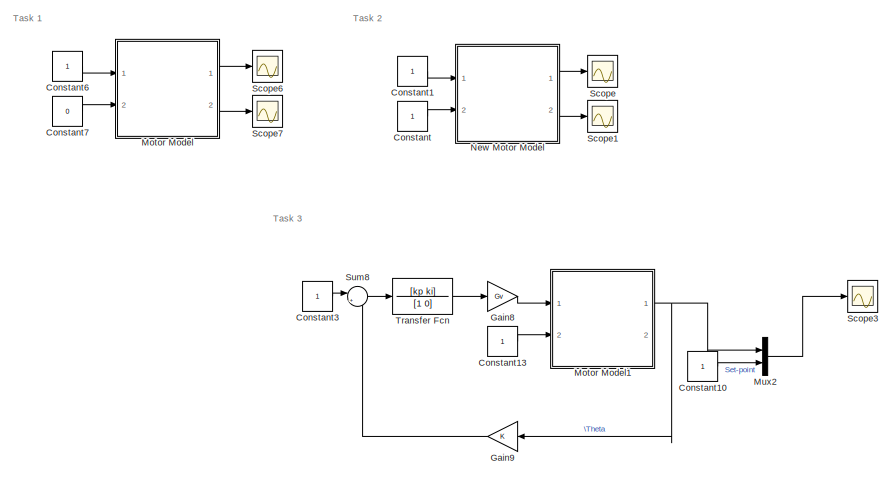
[diagram: root canvas - part 1/3, top right region]
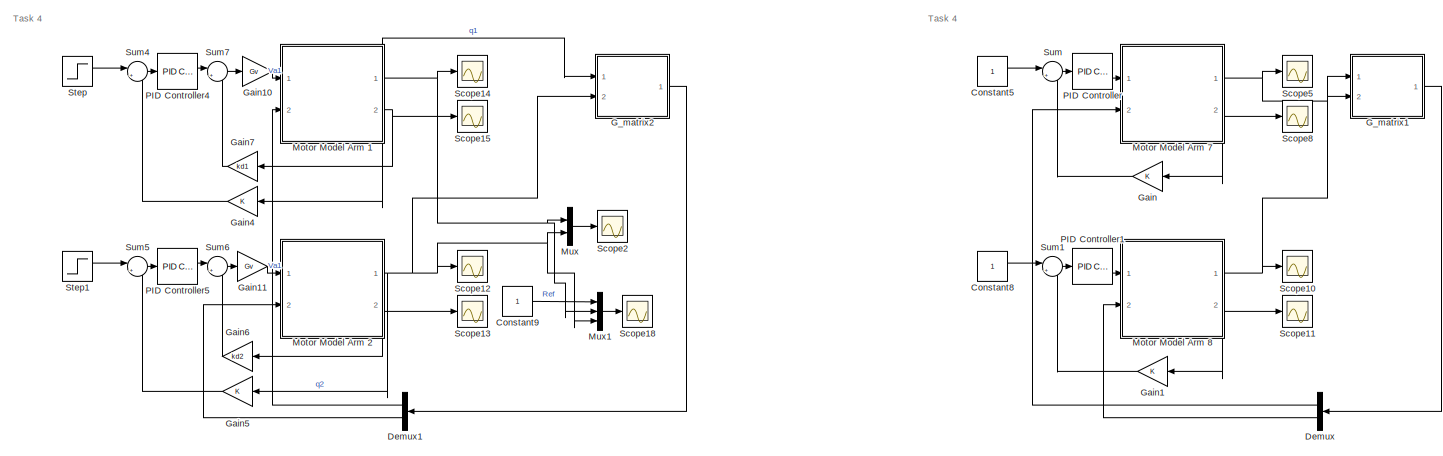
[diagram: root canvas - part 2/3, middle left region]
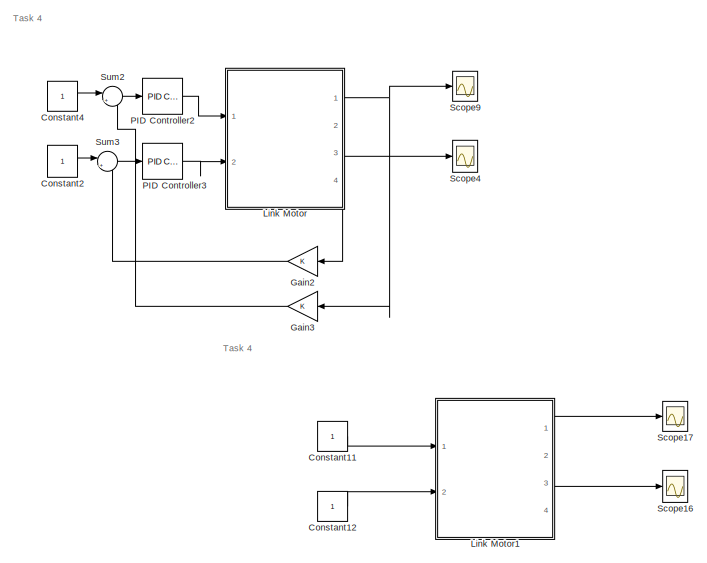
[diagram: root canvas - part 3/3, bottom right region]
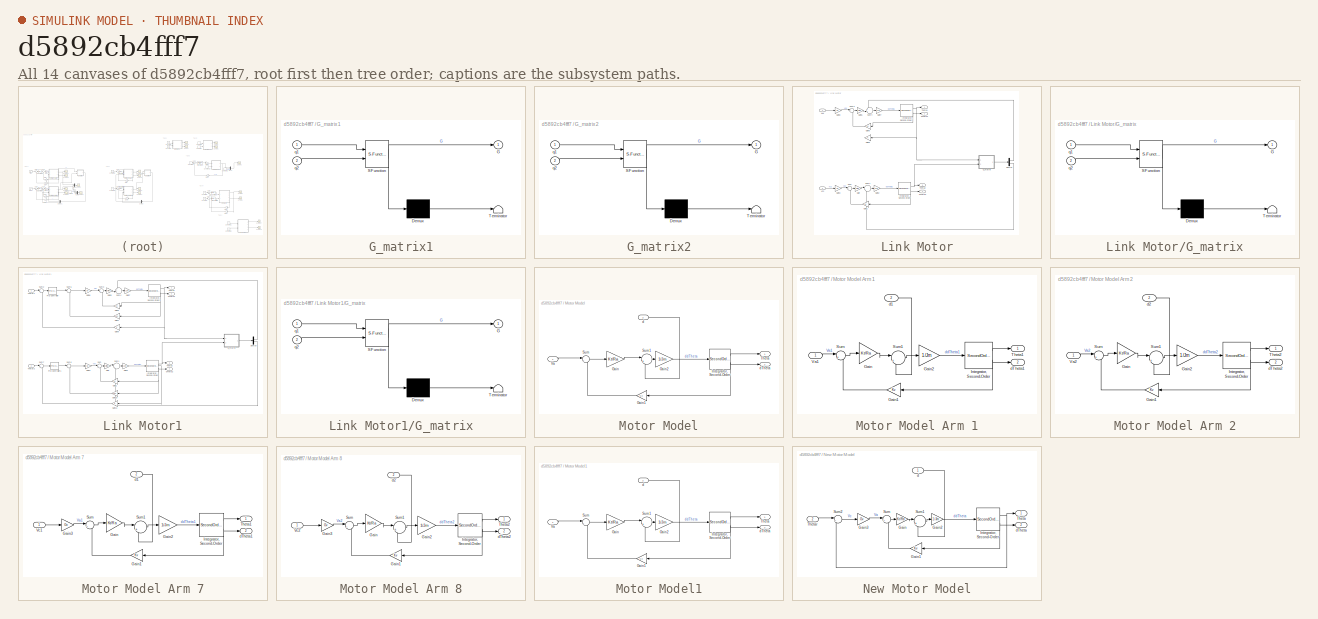
[diagram: thumbnail index - all 14 canvases of the model, root first then tree order]
MODEL slx_d5892cb4fff7
KIND model
CONFIG AbsTol = auto
CONFIG EnableMultiTasking = off
CONFIG FixedStep = dt
CONFIG MaxStep = auto
CONFIG MinStep = auto
CONFIG RelTol = 1e-3
CONFIG SampleTimeConstraint = Unconstrained
CONFIG Solver = ode4
CONFIG SolverName = ode4
CONFIG StartTime = 0.0
CONFIG StopTime = 100
BLOCK [Constant] Constant
BLOCK [Constant] Constant1
BLOCK [Constant] Constant10
BLOCK [Constant] Constant11
BLOCK [Constant] Constant12
BLOCK [Constant] Constant13
BLOCK [Constant] Constant2
BLOCK [Constant] Constant3
BLOCK [Constant] Constant4
BLOCK [Constant] Constant5
BLOCK [Constant] Constant6
BLOCK [Constant] Constant7
  Value = 0
BLOCK [Constant] Constant8
BLOCK [Constant] Constant9
BLOCK [Demux] Demux
  Outputs = 2
  Ports = [1, 2]
BLOCK [Demux] Demux1
  Outputs = 2
  Ports = [1, 2]
BLOCK [SubSystem] G_matrix1
  ErrorFcn = Stateflow.Translate.translate
  PermitHierarchicalResolution = ExplicitOnly
  Ports = [2, 1]
  RequestExecContextInheritance = off
  SFBlockType = MATLAB Function
  TreatAsAtomicUnit = on
BLOCK [Demux] G_matrix1/ Demux 
  Outputs = 1
  Ports = [1, 1]
BLOCK [S-Function] G_matrix1/ SFunction 
  EnableBusSupport = on
  FunctionName = sf_sfun
  Parameters = g,l1,lc1,lc2,m1,m2
  PortCounts = [2 2]
  Ports = [2, 2]
  SFcnIsStateOwnerBlock = off
  SFunctionDeploymentMode = off
  Tag = Stateflow S-Function 1
BLOCK [Terminator] G_matrix1/ Terminator 
BLOCK [Outport] G_matrix1/G
  VectorParamsAs1DForOutWhenUnconnected = off
BLOCK [Inport] G_matrix1/q1
BLOCK [Inport] G_matrix1/q2
  Port = 2
BLOCK [SubSystem] G_matrix2
  ErrorFcn = Stateflow.Translate.translate
  PermitHierarchicalResolution = ExplicitOnly
  Ports = [2, 1]
  RequestExecContextInheritance = off
  SFBlockType = MATLAB Function
  TreatAsAtomicUnit = on
BLOCK [Demux] G_matrix2/ Demux 
  Outputs = 1
  Ports = [1, 1]
BLOCK [S-Function] G_matrix2/ SFunction 
  EnableBusSupport = on
  FunctionName = sf_sfun
  Parameters = g,l1,lc1,lc2,m1,m2
  PortCounts = [2 2]
  Ports = [2, 2]
  SFcnIsStateOwnerBlock = off
  SFunctionDeploymentMode = off
  Tag = Stateflow S-Function 2
BLOCK [Terminator] G_matrix2/ Terminator 
BLOCK [Outport] G_matrix2/G
  VectorParamsAs1DForOutWhenUnconnected = off
BLOCK [Inport] G_matrix2/q1
BLOCK [Inport] G_matrix2/q2
  Port = 2
BLOCK [Gain] Gain
  Gain = K
BLOCK [Gain] Gain1
  Gain = K
BLOCK [Gain] Gain10
  Gain = Gv
BLOCK [Gain] Gain11
  Gain = Gv
BLOCK [Gain] Gain2
  Gain = K
BLOCK [Gain] Gain3
  Gain = K
BLOCK [Gain] Gain4
  Gain = K
BLOCK [Gain] Gain5
  Gain = K
BLOCK [Gain] Gain6
  Gain = kd2
BLOCK [Gain] Gain7
  Gain = kd1
BLOCK [Gain] Gain8
  Gain = Gv
BLOCK [Gain] Gain9
  Gain = K
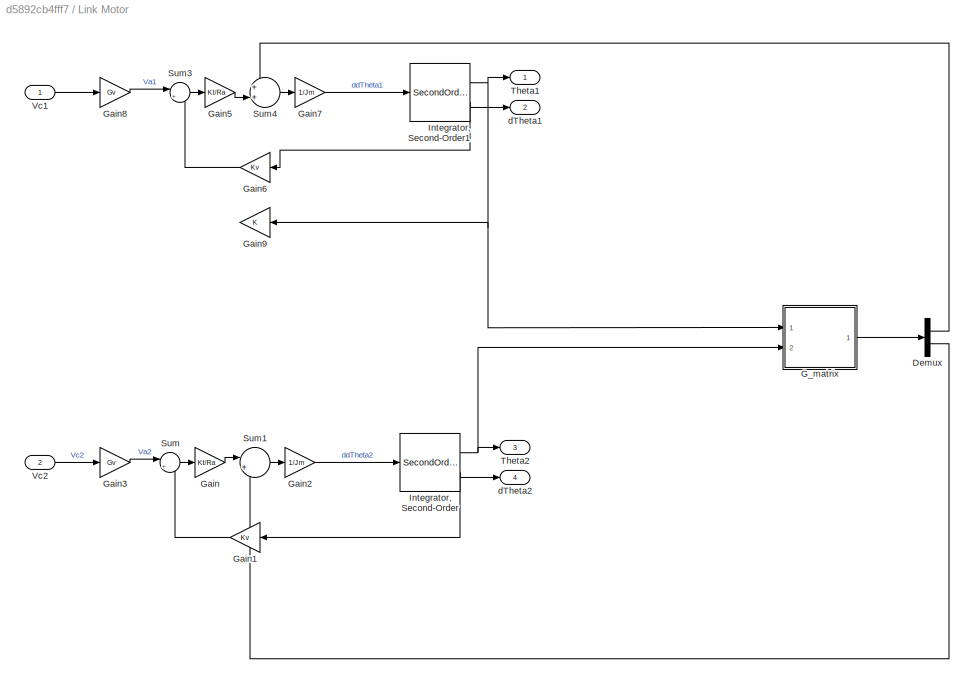
BLOCK [SubSystem] Link Motor
  Ports = [2, 4]
  RequestExecContextInheritance = off
BLOCK [Demux] Link Motor/Demux
  Outputs = 2
  Ports = [1, 2]
BLOCK [SubSystem] Link Motor/G_matrix
  ErrorFcn = Stateflow.Translate.translate
  PermitHierarchicalResolution = ExplicitOnly
  Ports = [2, 1]
  RequestExecContextInheritance = off
  SFBlockType = MATLAB Function
  TreatAsAtomicUnit = on
BLOCK [Demux] Link Motor/G_matrix/ Demux 
  Outputs = 1
  Ports = [1, 1]
BLOCK [S-Function] Link Motor/G_matrix/ SFunction 
  EnableBusSupport = on
  FunctionName = sf_sfun
  Parameters = g,l1,lc1,lc2,m1,m2
  PortCounts = [2 2]
  Ports = [2, 2]
  SFcnIsStateOwnerBlock = off
  SFunctionDeploymentMode = off
  Tag = Stateflow S-Function 8
BLOCK [Terminator] Link Motor/G_matrix/ Terminator 
BLOCK [Outport] Link Motor/G_matrix/G
  VectorParamsAs1DForOutWhenUnconnected = off
BLOCK [Inport] Link Motor/G_matrix/q1
BLOCK [Inport] Link Motor/G_matrix/q2
  Port = 2
BLOCK [Gain] Link Motor/Gain
  Gain = Kt/Ra
BLOCK [Gain] Link Motor/Gain1
  Gain = Kv
BLOCK [Gain] Link Motor/Gain2
  Gain = 1/Jm
BLOCK [Gain] Link Motor/Gain3
  Gain = Gv
BLOCK [Gain] Link Motor/Gain5
  Gain = Kt/Ra
BLOCK [Gain] Link Motor/Gain6
  Gain = Kv
BLOCK [Gain] Link Motor/Gain7
  Gain = 1/Jm
BLOCK [Gain] Link Motor/Gain8
  Gain = Gv
BLOCK [Gain] Link Motor/Gain9
  Gain = K
BLOCK [SecondOrderIntegrator] Link Motor/Integrator, Second-Order
  Ports = [1, 2]
BLOCK [SecondOrderIntegrator] Link Motor/Integrator, Second-Order1
  Ports = [1, 2]
BLOCK [Sum] Link Motor/Sum
  Inputs = |+-
  Ports = [2, 1]
BLOCK [Sum] Link Motor/Sum1
  Inputs = |++
  Ports = [2, 1]
BLOCK [Sum] Link Motor/Sum3
  Inputs = |+-
  Ports = [2, 1]
BLOCK [Sum] Link Motor/Sum4
  Inputs = ++|
  Ports = [2, 1]
BLOCK [Outport] Link Motor/Theta1
BLOCK [Outport] Link Motor/Theta2
  Port = 3
BLOCK [Inport] Link Motor/Vc1
BLOCK [Inport] Link Motor/Vc2
  Port = 2
BLOCK [Outport] Link Motor/dTheta1
  Port = 2
BLOCK [Outport] Link Motor/dTheta2
  Port = 4
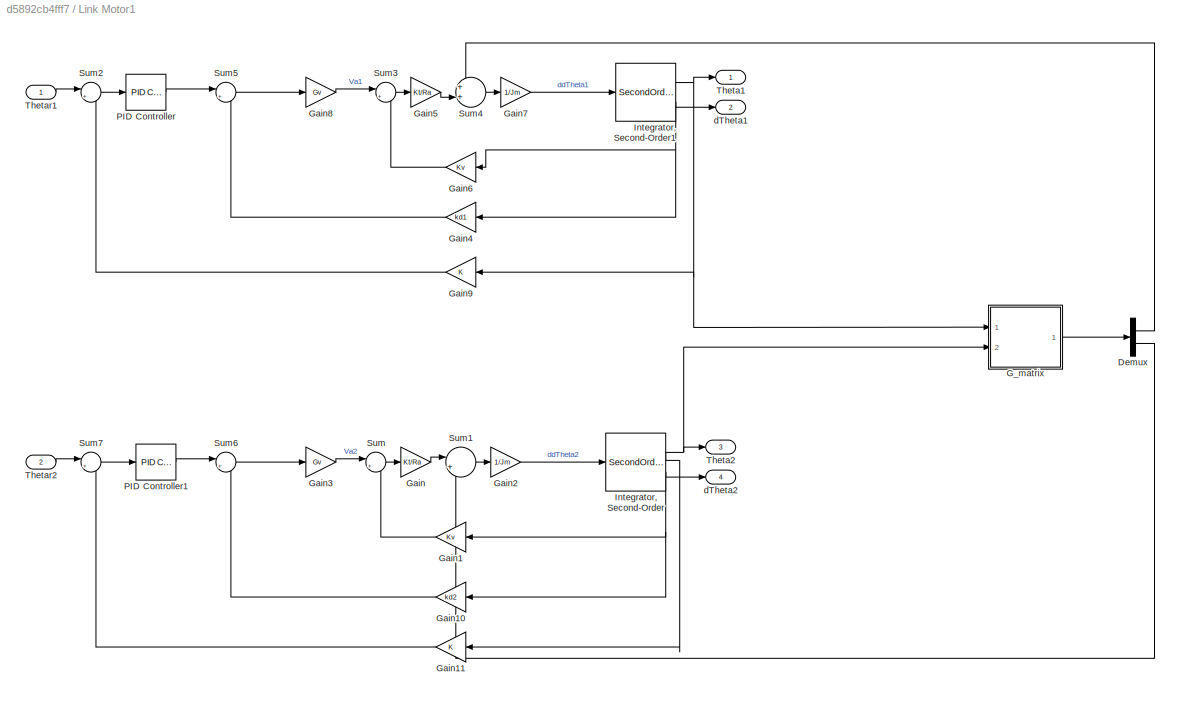
BLOCK [SubSystem] Link Motor1
  Ports = [2, 4]
  RequestExecContextInheritance = off
BLOCK [Demux] Link Motor1/Demux
  Outputs = 2
  Ports = [1, 2]
BLOCK [SubSystem] Link Motor1/G_matrix
  ErrorFcn = Stateflow.Translate.translate
  PermitHierarchicalResolution = ExplicitOnly
  Ports = [2, 1]
  RequestExecContextInheritance = off
  SFBlockType = MATLAB Function
  TreatAsAtomicUnit = on
BLOCK [Demux] Link Motor1/G_matrix/ Demux 
  Outputs = 1
  Ports = [1, 1]
BLOCK [S-Function] Link Motor1/G_matrix/ SFunction 
  EnableBusSupport = on
  FunctionName = sf_sfun
  Parameters = g,l1,lc1,lc2,m1,m2
  PortCounts = [2 2]
  Ports = [2, 2]
  SFcnIsStateOwnerBlock = off
  SFunctionDeploymentMode = off
  Tag = Stateflow S-Function 3
BLOCK [Terminator] Link Motor1/G_matrix/ Terminator 
BLOCK [Outport] Link Motor1/G_matrix/G
  VectorParamsAs1DForOutWhenUnconnected = off
BLOCK [Inport] Link Motor1/G_matrix/q1
BLOCK [Inport] Link Motor1/G_matrix/q2
  Port = 2
BLOCK [Gain] Link Motor1/Gain
  Gain = Kt/Ra
BLOCK [Gain] Link Motor1/Gain1
  Gain = Kv
BLOCK [Gain] Link Motor1/Gain10
  Gain = kd2
BLOCK [Gain] Link Motor1/Gain11
  Gain = K
BLOCK [Gain] Link Motor1/Gain2
  Gain = 1/Jm
BLOCK [Gain] Link Motor1/Gain3
  Gain = Gv
BLOCK [Gain] Link Motor1/Gain4
  Gain = kd1
BLOCK [Gain] Link Motor1/Gain5
  Gain = Kt/Ra
BLOCK [Gain] Link Motor1/Gain6
  Gain = Kv
BLOCK [Gain] Link Motor1/Gain7
  Gain = 1/Jm
BLOCK [Gain] Link Motor1/Gain8
  Gain = Gv
BLOCK [Gain] Link Motor1/Gain9
  Gain = K
BLOCK [SecondOrderIntegrator] Link Motor1/Integrator, Second-Order
  Ports = [1, 2]
BLOCK [SecondOrderIntegrator] Link Motor1/Integrator, Second-Order1
  Ports = [1, 2]
BLOCK [Reference] Link Motor1/PID Controller  REF=simulink/Continuous/PID Controller
  Ports = [1, 1]
  SourceBlock = simulink/Continuous/PID Controller
  SourceProductBaseCode = SL
  SourceType = PID 1dof
BLOCK [Reference] Link Motor1/PID Controller1  REF=simulink/Continuous/PID Controller
  Ports = [1, 1]
  SourceBlock = simulink/Continuous/PID Controller
  SourceProductBaseCode = SL
  SourceType = PID 1dof
BLOCK [Sum] Link Motor1/Sum
  Inputs = |+-
  Ports = [2, 1]
BLOCK [Sum] Link Motor1/Sum1
  Inputs = |++
  Ports = [2, 1]
BLOCK [Sum] Link Motor1/Sum2
  Inputs = |+-
  Ports = [2, 1]
BLOCK [Sum] Link Motor1/Sum3
  Inputs = |+-
  Ports = [2, 1]
BLOCK [Sum] Link Motor1/Sum4
  Inputs = ++|
  Ports = [2, 1]
BLOCK [Sum] Link Motor1/Sum5
  Inputs = |+-
  Ports = [2, 1]
BLOCK [Sum] Link Motor1/Sum6
  Inputs = |+-
  Ports = [2, 1]
BLOCK [Sum] Link Motor1/Sum7
  Inputs = |+-
  Ports = [2, 1]
BLOCK [Outport] Link Motor1/Theta1
BLOCK [Outport] Link Motor1/Theta2
  Port = 3
BLOCK [Inport] Link Motor1/Thetar1
BLOCK [Inport] Link Motor1/Thetar2
  Port = 2
BLOCK [Outport] Link Motor1/dTheta1
  Port = 2
BLOCK [Outport] Link Motor1/dTheta2
  Port = 4
BLOCK [SubSystem] Motor Model
  Ports = [2, 2]
  RequestExecContextInheritance = off
BLOCK [SubSystem] Motor Model Arm 1
  Ports = [2, 2]
  RequestExecContextInheritance = off
BLOCK [Gain] Motor Model Arm 1/Gain
  Gain = Kt/Ra
BLOCK [Gain] Motor Model Arm 1/Gain1
  Gain = Kv
BLOCK [Gain] Motor Model Arm 1/Gain2
  Gain = 1/Jm
BLOCK [SecondOrderIntegrator] Motor Model Arm 1/Integrator, Second-Order
  Ports = [1, 2]
BLOCK [Sum] Motor Model Arm 1/Sum
  Inputs = |+-
  Ports = [2, 1]
BLOCK [Sum] Motor Model Arm 1/Sum1
  Inputs = |++
  Ports = [2, 1]
BLOCK [Outport] Motor Model Arm 1/Theta1
  NameLocation = top
  VectorParamsAs1DForOutWhenUnconnected = off
BLOCK [Inport] Motor Model Arm 1/Va1
BLOCK [Inport] Motor Model Arm 1/d1
  Port = 2
BLOCK [Outport] Motor Model Arm 1/dTheta1
  Port = 2
  VectorParamsAs1DForOutWhenUnconnected = off
BLOCK [SubSystem] Motor Model Arm 2
  Ports = [2, 2]
  RequestExecContextInheritance = off
BLOCK [Gain] Motor Model Arm 2/Gain
  Gain = Kt/Ra
BLOCK [Gain] Motor Model Arm 2/Gain1
  Gain = Kv
BLOCK [Gain] Motor Model Arm 2/Gain2
  Gain = 1/Jm
BLOCK [SecondOrderIntegrator] Motor Model Arm 2/Integrator, Second-Order
  Ports = [1, 2]
BLOCK [Sum] Motor Model Arm 2/Sum
  Inputs = |+-
  Ports = [2, 1]
BLOCK [Sum] Motor Model Arm 2/Sum1
  Inputs = |++
  Ports = [2, 1]
BLOCK [Outport] Motor Model Arm 2/Theta2
  NameLocation = top
  VectorParamsAs1DForOutWhenUnconnected = off
BLOCK [Inport] Motor Model Arm 2/Va2
BLOCK [Inport] Motor Model Arm 2/d2
  Port = 2
BLOCK [Outport] Motor Model Arm 2/dTheta2
  Port = 2
  VectorParamsAs1DForOutWhenUnconnected = off
BLOCK [SubSystem] Motor Model Arm 7
  Ports = [2, 2]
  RequestExecContextInheritance = off
BLOCK [Gain] Motor Model Arm 7/Gain
  Gain = Kt/Ra
BLOCK [Gain] Motor Model Arm 7/Gain1
  Gain = Kv
BLOCK [Gain] Motor Model Arm 7/Gain2
  Gain = 1/Jm
BLOCK [Gain] Motor Model Arm 7/Gain3
  Gain = Gv
BLOCK [SecondOrderIntegrator] Motor Model Arm 7/Integrator, Second-Order
  Ports = [1, 2]
BLOCK [Sum] Motor Model Arm 7/Sum
  Inputs = |+-
  Ports = [2, 1]
BLOCK [Sum] Motor Model Arm 7/Sum1
  Inputs = |++
  Ports = [2, 1]
BLOCK [Outport] Motor Model Arm 7/Theta1
  NameLocation = top
  VectorParamsAs1DForOutWhenUnconnected = off
BLOCK [Inport] Motor Model Arm 7/Vc1
BLOCK [Inport] Motor Model Arm 7/d1
  Port = 2
BLOCK [Outport] Motor Model Arm 7/dTheta1
  Port = 2
  VectorParamsAs1DForOutWhenUnconnected = off
BLOCK [SubSystem] Motor Model Arm 8
  Ports = [2, 2]
  RequestExecContextInheritance = off
BLOCK [Gain] Motor Model Arm 8/Gain
  Gain = Kt/Ra
BLOCK [Gain] Motor Model Arm 8/Gain1
  Gain = Kv
BLOCK [Gain] Motor Model Arm 8/Gain2
  Gain = 1/Jm
BLOCK [Gain] Motor Model Arm 8/Gain3
  Gain = Gv
BLOCK [SecondOrderIntegrator] Motor Model Arm 8/Integrator, Second-Order
  Ports = [1, 2]
BLOCK [Sum] Motor Model Arm 8/Sum
  Inputs = |+-
  Ports = [2, 1]
BLOCK [Sum] Motor Model Arm 8/Sum1
  Inputs = |++
  Ports = [2, 1]
BLOCK [Outport] Motor Model Arm 8/Theta2
  NameLocation = top
  VectorParamsAs1DForOutWhenUnconnected = off
BLOCK [Inport] Motor Model Arm 8/Vc2
BLOCK [Inport] Motor Model Arm 8/d2
  Port = 2
BLOCK [Outport] Motor Model Arm 8/dTheta2
  Port = 2
  VectorParamsAs1DForOutWhenUnconnected = off
BLOCK [Gain] Motor Model/Gain
  Gain = Kt/Ra
BLOCK [Gain] Motor Model/Gain1
  Gain = Kv
BLOCK [Gain] Motor Model/Gain2
  Gain = 1/Jm
BLOCK [SecondOrderIntegrator] Motor Model/Integrator, Second-Order
  Ports = [1, 2]
BLOCK [Sum] Motor Model/Sum
  Inputs = |+-
  Ports = [2, 1]
BLOCK [Sum] Motor Model/Sum1
  Inputs = |++
  Ports = [2, 1]
BLOCK [Outport] Motor Model/Theta
  NameLocation = top
  VectorParamsAs1DForOutWhenUnconnected = off
BLOCK [Inport] Motor Model/Va
  NameLocation = top
BLOCK [Inport] Motor Model/d
  Port = 2
BLOCK [Outport] Motor Model/dTheta
  Port = 2
  VectorParamsAs1DForOutWhenUnconnected = off
BLOCK [SubSystem] Motor Model1
  Ports = [2, 2]
  RequestExecContextInheritance = off
BLOCK [Gain] Motor Model1/Gain
  Gain = Kt/Ra
BLOCK [Gain] Motor Model1/Gain1
  Gain = Kv
BLOCK [Gain] Motor Model1/Gain2
  Gain = 1/Jm
BLOCK [SecondOrderIntegrator] Motor Model1/Integrator, Second-Order
  Ports = [1, 2]
BLOCK [Sum] Motor Model1/Sum
  Inputs = |+-
  Ports = [2, 1]
BLOCK [Sum] Motor Model1/Sum1
  Inputs = |++
  Ports = [2, 1]
BLOCK [Outport] Motor Model1/Theta
  NameLocation = top
  VectorParamsAs1DForOutWhenUnconnected = off
BLOCK [Inport] Motor Model1/Va
  NameLocation = top
BLOCK [Inport] Motor Model1/d
  Port = 2
BLOCK [Outport] Motor Model1/dTheta
  Port = 2
  VectorParamsAs1DForOutWhenUnconnected = off
BLOCK [Mux] Mux
  DisplayOption = bar
  Inputs = 2
  Ports = [2, 1]
BLOCK [Mux] Mux1
  DisplayOption = bar
  Inputs = 3
  Ports = [3, 1]
BLOCK [Mux] Mux2
  DisplayOption = bar
  Inputs = 2
  Ports = [2, 1]
BLOCK [SubSystem] New Motor Model
  Ports = [2, 2]
  RequestExecContextInheritance = off
BLOCK [Gain] New Motor Model/Gain
  Gain = Kt/Ra
BLOCK [Gain] New Motor Model/Gain1
  Gain = Kv
BLOCK [Gain] New Motor Model/Gain2
  Gain = 1/Jm
BLOCK [Gain] New Motor Model/Gain3
  Gain = Gv
BLOCK [SecondOrderIntegrator] New Motor Model/Integrator, Second-Order
  Ports = [1, 2]
BLOCK [Sum] New Motor Model/Sum
  Inputs = |+-
  Ports = [2, 1]
BLOCK [Sum] New Motor Model/Sum1
  Inputs = |++
  Ports = [2, 1]
BLOCK [Sum] New Motor Model/Sum2
  Inputs = |+-
  Ports = [2, 1]
BLOCK [Outport] New Motor Model/Theta
  NameLocation = top
  VectorParamsAs1DForOutWhenUnconnected = off
BLOCK [Inport] New Motor Model/Thetar
  Port = 2
BLOCK [Inport] New Motor Model/d
BLOCK [Outport] New Motor Model/dTheta
  Port = 2
  VectorParamsAs1DForOutWhenUnconnected = off
BLOCK [Reference] PID Controller  REF=simulink/Continuous/PID Controller
  Ports = [1, 1]
  SourceBlock = simulink/Continuous/PID Controller
  SourceProductBaseCode = SL
  SourceType = PID 1dof
BLOCK [Reference] PID Controller1  REF=simulink/Continuous/PID Controller
  Ports = [1, 1]
  SourceBlock = simulink/Continuous/PID Controller
  SourceProductBaseCode = SL
  SourceType = PID 1dof
BLOCK [Reference] PID Controller2  REF=simulink/Continuous/PID Controller
  Ports = [1, 1]
  SourceBlock = simulink/Continuous/PID Controller
  SourceProductBaseCode = SL
  SourceType = PID 1dof
BLOCK [Reference] PID Controller3  REF=simulink/Continuous/PID Controller
  Ports = [1, 1]
  SourceBlock = simulink/Continuous/PID Controller
  SourceProductBaseCode = SL
  SourceType = PID 1dof
BLOCK [Reference] PID Controller4  REF=simulink/Continuous/PID Controller
  Ports = [1, 1]
  SourceBlock = simulink/Continuous/PID Controller
  SourceProductBaseCode = SL
  SourceType = PID 1dof
BLOCK [Reference] PID Controller5  REF=simulink/Continuous/PID Controller
  Ports = [1, 1]
  SourceBlock = simulink/Continuous/PID Controller
  SourceProductBaseCode = SL
  SourceType = PID 1dof
BLOCK [Scope] Scope
  Floating = off
  NumInputPorts = 1
  Ports = [1]
  ScopeSpecificationString = Simulink.scopes.TimeScopeBlockCfg('CurrentConfiguration', extmgr.ConfigurationSet(extmgr.Configuration('Core','General UI',true),extmgr.Configuration('Core','Source UI',true),extmgr.Configuration('Sources','WiredSimulink',true,'DataLoggingVariableName','ScopeData1'),extmgr.Configuration('Visuals','Time Domain',true,'SerializedDisplays',{struct('MinYLimReal','-0.33173','MaxYLimReal','2.98555','YLab...<+1403ch>
BLOCK [Scope] Scope1
  Floating = off
  NumInputPorts = 1
  Ports = [1]
  ScopeSpecificationString = Simulink.scopes.TimeScopeBlockCfg('CurrentConfiguration', extmgr.ConfigurationSet(extmgr.Configuration('Core','General UI',true),extmgr.Configuration('Core','Source UI',true),extmgr.Configuration('Sources','WiredSimulink',true,'DataLoggingVariableName','ScopeData2'),extmgr.Configuration('Visuals','Time Domain',true,'SerializedDisplays',{struct('MinYLimReal','-300000000000000000','MaxYLimReal','300...<+1540ch>
BLOCK [Scope] Scope10
  Floating = off
  NumInputPorts = 1
  Ports = [1]
  ScopeSpecificationString = Simulink.scopes.TimeScopeBlockCfg('CurrentConfiguration', extmgr.ConfigurationSet(extmgr.Configuration('Core','General UI',true),extmgr.Configuration('Core','Source UI',true),extmgr.Configuration('Sources','WiredSimulink',true,'DataLoggingVariableName','ScopeData4'),extmgr.Configuration('Visuals','Time Domain',true,'SerializedDisplays',{struct('MinYLimReal','-0.13001','MaxYLimReal','1.17009','YLab...<+1405ch>
BLOCK [Scope] Scope11
  Floating = off
  NumInputPorts = 1
  Ports = [1]
  ScopeSpecificationString = Simulink.scopes.TimeScopeBlockCfg('CurrentConfiguration', extmgr.ConfigurationSet(extmgr.Configuration('Core','General UI',true),extmgr.Configuration('Core','Source UI',true),extmgr.Configuration('Sources','WiredSimulink',true,'DataLoggingVariableName','ScopeData5'),extmgr.Configuration('Visuals','Time Domain',true,'SerializedDisplays',{struct('MinYLimReal','-300000000000000000','MaxYLimReal','300...<+1540ch>
BLOCK [Scope] Scope12
  Floating = off
  NumInputPorts = 1
  Ports = [1]
  ScopeSpecificationString = Simulink.scopes.TimeScopeBlockCfg('CurrentConfiguration', extmgr.ConfigurationSet(extmgr.Configuration('Core','General UI',true),extmgr.Configuration('Core','Source UI',true),extmgr.Configuration('Sources','WiredSimulink',true,'DataLoggingVariableName','ScopeData1'),extmgr.Configuration('Visuals','Time Domain',true,'SerializedDisplays',{struct('MinYLimReal','-0.14166','MaxYLimReal','1.27497','YLab...<+1405ch>
BLOCK [Scope] Scope13
  Floating = off
  NumInputPorts = 1
  Ports = [1]
  ScopeSpecificationString = Simulink.scopes.TimeScopeBlockCfg('CurrentConfiguration', extmgr.ConfigurationSet(extmgr.Configuration('Core','General UI',true),extmgr.Configuration('Core','Source UI',true),extmgr.Configuration('Sources','WiredSimulink',true,'DataLoggingVariableName','ScopeData2'),extmgr.Configuration('Visuals','Time Domain',true,'SerializedDisplays',{struct('MinYLimReal','-300000000000000000','MaxYLimReal','300...<+1540ch>
BLOCK [Scope] Scope14
  Floating = off
  NumInputPorts = 1
  Ports = [1]
  ScopeSpecificationString = Simulink.scopes.TimeScopeBlockCfg('CurrentConfiguration', extmgr.ConfigurationSet(extmgr.Configuration('Core','General UI',true),extmgr.Configuration('Core','Source UI',true),extmgr.Configuration('Sources','WiredSimulink',true,'DataLoggingVariableName','ScopeData3'),extmgr.Configuration('Visuals','Time Domain',true,'SerializedDisplays',{struct('MinYLimReal','-0.14868','MaxYLimReal','1.33809','YLab...<+1405ch>
BLOCK [Scope] Scope15
  Floating = off
  NumInputPorts = 1
  Ports = [1]
  ScopeSpecificationString = Simulink.scopes.TimeScopeBlockCfg('CurrentConfiguration', extmgr.ConfigurationSet(extmgr.Configuration('Core','General UI',true),extmgr.Configuration('Core','Source UI',true),extmgr.Configuration('Sources','WiredSimulink',true,'DataLoggingVariableName','ScopeData4'),extmgr.Configuration('Visuals','Time Domain',true,'SerializedDisplays',{struct('MinYLimReal','-300000000000000000','MaxYLimReal','300...<+1542ch>
BLOCK [Scope] Scope16
  Floating = off
  NumInputPorts = 1
  Ports = [1]
  ScopeSpecificationString = Simulink.scopes.TimeScopeBlockCfg('CurrentConfiguration', extmgr.ConfigurationSet(extmgr.Configuration('Core','General UI',true),extmgr.Configuration('Core','Source UI',true),extmgr.Configuration('Sources','WiredSimulink',true,'DataLoggingVariableName','ScopeData5'),extmgr.Configuration('Visuals','Time Domain',true,'SerializedDisplays',{struct('MinYLimReal','-0.19309','MaxYLimReal','1.73784','YLab...<+1434ch>
BLOCK [Scope] Scope17
  Floating = off
  NumInputPorts = 1
  Ports = [1]
  ScopeSpecificationString = Simulink.scopes.TimeScopeBlockCfg('CurrentConfiguration', extmgr.ConfigurationSet(extmgr.Configuration('Core','General UI',true),extmgr.Configuration('Core','Source UI',true),extmgr.Configuration('Sources','WiredSimulink',true,'DataLoggingVariableName','ScopeData6'),extmgr.Configuration('Visuals','Time Domain',true,'SerializedDisplays',{struct('MinYLimReal','-300000000000000000','MaxYLimReal','300...<+1571ch>
BLOCK [Scope] Scope18
  Floating = off
  NumInputPorts = 1
  Ports = [1]
  ScopeSpecificationString = Simulink.scopes.TimeScopeBlockCfg('CurrentConfiguration', extmgr.ConfigurationSet(extmgr.Configuration('Core','General UI',true),extmgr.Configuration('Core','Source UI',true),extmgr.Configuration('Sources','WiredSimulink',true,'DataLoggingVariableName','ScopeData1'),extmgr.Configuration('Visuals','Time Domain',true,'SerializedDisplays',{struct('MinYLimReal','-0.14795','MaxYLimReal','1.33157','YLab...<+1569ch>
BLOCK [Scope] Scope2
  Floating = off
  NumInputPorts = 1
  Ports = [1]
  ScopeSpecificationString = Simulink.scopes.TimeScopeBlockCfg('CurrentConfiguration', extmgr.ConfigurationSet(extmgr.Configuration('Core','General UI',true),extmgr.Configuration('Core','Source UI',true),extmgr.Configuration('Sources','WiredSimulink',true,'DataLoggingVariableName','ScopeData1'),extmgr.Configuration('Visuals','Time Domain',true,'SerializedDisplays',{struct('MinYLimReal','-0.14795','MaxYLimReal','1.33157','YLab...<+1503ch>
BLOCK [Scope] Scope3
  Floating = off
  NumInputPorts = 1
  Ports = [1]
  ScopeSpecificationString = Simulink.scopes.TimeScopeBlockCfg('CurrentConfiguration', extmgr.ConfigurationSet(extmgr.Configuration('Core','General UI',true),extmgr.Configuration('Core','Source UI',true),extmgr.Configuration('Sources','WiredSimulink',true,'DataLoggingVariableName','ScopeData1'),extmgr.Configuration('Visuals','Time Domain',true,'SerializedDisplays',{struct('MinYLimReal','-0.24677','MaxYLimReal','2.22091','YLab...<+1568ch>
BLOCK [Scope] Scope4
  Floating = off
  NumInputPorts = 1
  Ports = [1]
  ScopeSpecificationString = Simulink.scopes.TimeScopeBlockCfg('CurrentConfiguration', extmgr.ConfigurationSet(extmgr.Configuration('Core','General UI',true),extmgr.Configuration('Core','Source UI',true),extmgr.Configuration('Sources','WiredSimulink',true,'DataLoggingVariableName','ScopeData1'),extmgr.Configuration('Visuals','Time Domain',true,'SerializedDisplays',{struct('MinYLimReal','-0.12563','MaxYLimReal','1.13071','YLab...<+1433ch>
BLOCK [Scope] Scope5
  Floating = off
  NumInputPorts = 1
  Ports = [1]
  ScopeSpecificationString = Simulink.scopes.TimeScopeBlockCfg('CurrentConfiguration', extmgr.ConfigurationSet(extmgr.Configuration('Core','General UI',true),extmgr.Configuration('Core','Source UI',true),extmgr.Configuration('Sources','WiredSimulink',true,'DataLoggingVariableName','ScopeData2'),extmgr.Configuration('Visuals','Time Domain',true,'SerializedDisplays',{struct('MinYLimReal','-0.19131','MaxYLimReal','1.72182','YLab...<+1405ch>
BLOCK [Scope] Scope6
  Floating = off
  NumInputPorts = 1
  Ports = [1]
  ScopeSpecificationString = Simulink.scopes.TimeScopeBlockCfg('CurrentConfiguration', extmgr.ConfigurationSet(extmgr.Configuration('Core','General UI',true),extmgr.Configuration('Core','Source UI',true),extmgr.Configuration('Sources','WiredSimulink',true,'DataLoggingVariableName','ScopeData3'),extmgr.Configuration('Visuals','Time Domain',true,'SerializedDisplays',{struct('MinYLimReal','-23.1985','MaxYLimReal','208.78652','YL...<+1463ch>
BLOCK [Scope] Scope7
  Floating = off
  NumInputPorts = 1
  Ports = [1]
  ScopeSpecificationString = Simulink.scopes.TimeScopeBlockCfg('CurrentConfiguration', extmgr.ConfigurationSet(extmgr.Configuration('Core','General UI',true),extmgr.Configuration('Core','Source UI',true),extmgr.Configuration('Sources','WiredSimulink',true,'DataLoggingVariableName','ScopeData4'),extmgr.Configuration('Visuals','Time Domain',true,'SerializedDisplays',{struct('MinYLimReal','-0.24976','MaxYLimReal','2.24783','YLab...<+1434ch>
BLOCK [Scope] Scope8
  Floating = off
  NumInputPorts = 1
  Ports = [1]
  ScopeSpecificationString = Simulink.scopes.TimeScopeBlockCfg('CurrentConfiguration', extmgr.ConfigurationSet(extmgr.Configuration('Core','General UI',true),extmgr.Configuration('Core','Source UI',true),extmgr.Configuration('Sources','WiredSimulink',true,'DataLoggingVariableName','ScopeData3'),extmgr.Configuration('Visuals','Time Domain',true,'SerializedDisplays',{struct('MinYLimReal','-300000000000000000','MaxYLimReal','300...<+1542ch>
BLOCK [Scope] Scope9
  Floating = off
  NumInputPorts = 1
  Ports = [1]
  ScopeSpecificationString = Simulink.scopes.TimeScopeBlockCfg('CurrentConfiguration', extmgr.ConfigurationSet(extmgr.Configuration('Core','General UI',true),extmgr.Configuration('Core','Source UI',true),extmgr.Configuration('Sources','WiredSimulink',true,'DataLoggingVariableName','ScopeData4'),extmgr.Configuration('Visuals','Time Domain',true,'SerializedDisplays',{struct('MinYLimReal','-300000000000000000','MaxYLimReal','300...<+1570ch>
BLOCK [Step] Step
  SampleTime = 0
BLOCK [Step] Step1
  SampleTime = 0
BLOCK [Sum] Sum
  Inputs = |+-
  Ports = [2, 1]
BLOCK [Sum] Sum1
  Inputs = |+-
  Ports = [2, 1]
BLOCK [Sum] Sum2
  Inputs = |+-
  Ports = [2, 1]
BLOCK [Sum] Sum3
  Inputs = |+-
  Ports = [2, 1]
BLOCK [Sum] Sum4
  Inputs = |+-
  Ports = [2, 1]
BLOCK [Sum] Sum5
  Inputs = |+-
  Ports = [2, 1]
BLOCK [Sum] Sum6
  Inputs = |+-
  Ports = [2, 1]
BLOCK [Sum] Sum7
  Inputs = |+-
  Ports = [2, 1]
BLOCK [Sum] Sum8
  Inputs = |+-
  Ports = [2, 1]
BLOCK [TransferFcn] Transfer Fcn
  Denominator = [1 0]
  Numerator = [kp ki]
ANNOTATION (root): Task 1
ANNOTATION (root): Task 2
ANNOTATION (root): Task 3
ANNOTATION (root): Task 4
LINE Constant10:1 -> Mux2:2
LINE Constant11:1 -> Link Motor1:1
LINE Constant12:1 -> Link Motor1:2
LINE Constant13:1 -> Motor Model1:2
LINE Constant1:1 -> New Motor Model:1
LINE Constant2:1 -> Sum3:1
LINE Constant3:1 -> Sum8:1
LINE Constant4:1 -> Sum2:1
LINE Constant5:1 -> Sum:1
LINE Constant6:1 -> Motor Model:1
LINE Constant7:1 -> Motor Model:2
LINE Constant8:1 -> Sum1:1
LINE Constant9:1 -> Mux1:1
LINE Constant:1 -> New Motor Model:2
LINE Demux1:1 -> Motor Model Arm 1:2
LINE Demux1:2 -> Motor Model Arm 2:2
LINE Demux:1 -> Motor Model Arm 7:2
LINE Demux:2 -> Motor Model Arm 8:2
LINE G_matrix1:1 -> Demux:1
LINE G_matrix2:1 -> Demux1:1
LINE Gain10:1 -> Motor Model Arm 1:1
LINE Gain11:1 -> Motor Model Arm 2:1
LINE Gain1:1 -> Sum1:2
LINE Gain2:1 -> Sum3:2
LINE Gain3:1 -> Sum2:2
LINE Gain4:1 -> Sum4:2
LINE Gain5:1 -> Sum5:2
LINE Gain6:1 -> Sum6:2
LINE Gain7:1 -> Sum7:2
LINE Gain8:1 -> Motor Model1:1
LINE Gain9:1 -> Sum8:2
LINE Gain:1 -> Sum:2
LINE Link Motor/Demux:1 -> Link Motor/Sum4:1
LINE Link Motor/Demux:2 -> Link Motor/Sum1:2
LINE Link Motor/G_matrix:1 -> Link Motor/Demux:1
LINE Link Motor/Gain1:1 -> Link Motor/Sum:2
LINE Link Motor/Gain2:1 -> Link Motor/Integrator, Second-Order:1
LINE Link Motor/Gain3:1 -> Link Motor/Sum:1
LINE Link Motor/Gain5:1 -> Link Motor/Sum4:2
LINE Link Motor/Gain6:1 -> Link Motor/Sum3:2
LINE Link Motor/Gain7:1 -> Link Motor/Integrator, Second-Order1:1
LINE Link Motor/Gain8:1 -> Link Motor/Sum3:1
LINE Link Motor/Gain:1 -> Link Motor/Sum1:1
NET Link Motor/Integrator, Second-Order1:1 -> Link Motor/G_matrix:1, Link Motor/Gain9:1, Link Motor/Theta1:1
NET Link Motor/Integrator, Second-Order1:2 -> Link Motor/Gain6:1, Link Motor/dTheta1:1
NET Link Motor/Integrator, Second-Order:1 -> Link Motor/G_matrix:2, Link Motor/Theta2:1
NET Link Motor/Integrator, Second-Order:2 -> Link Motor/Gain1:1, Link Motor/dTheta2:1
LINE Link Motor/Sum1:1 -> Link Motor/Gain2:1
LINE Link Motor/Sum3:1 -> Link Motor/Gain5:1
LINE Link Motor/Sum4:1 -> Link Motor/Gain7:1
LINE Link Motor/Sum:1 -> Link Motor/Gain:1
LINE Link Motor/Vc1:1 -> Link Motor/Gain8:1
LINE Link Motor/Vc2:1 -> Link Motor/Gain3:1
LINE Link Motor1/Demux:1 -> Link Motor1/Sum4:1
LINE Link Motor1/Demux:2 -> Link Motor1/Sum1:2
LINE Link Motor1/G_matrix:1 -> Link Motor1/Demux:1
LINE Link Motor1/Gain10:1 -> Link Motor1/Sum6:2
LINE Link Motor1/Gain11:1 -> Link Motor1/Sum7:2
LINE Link Motor1/Gain1:1 -> Link Motor1/Sum:2
LINE Link Motor1/Gain2:1 -> Link Motor1/Integrator, Second-Order:1
LINE Link Motor1/Gain3:1 -> Link Motor1/Sum:1
LINE Link Motor1/Gain4:1 -> Link Motor1/Sum5:2
LINE Link Motor1/Gain5:1 -> Link Motor1/Sum4:2
LINE Link Motor1/Gain6:1 -> Link Motor1/Sum3:2
LINE Link Motor1/Gain7:1 -> Link Motor1/Integrator, Second-Order1:1
LINE Link Motor1/Gain8:1 -> Link Motor1/Sum3:1
LINE Link Motor1/Gain9:1 -> Link Motor1/Sum2:2
LINE Link Motor1/Gain:1 -> Link Motor1/Sum1:1
NET Link Motor1/Integrator, Second-Order1:1 -> Link Motor1/G_matrix:1, Link Motor1/Gain9:1, Link Motor1/Theta1:1
NET Link Motor1/Integrator, Second-Order1:2 -> Link Motor1/Gain4:1, Link Motor1/Gain6:1, Link Motor1/dTheta1:1
NET Link Motor1/Integrator, Second-Order:1 -> Link Motor1/G_matrix:2, Link Motor1/Gain11:1, Link Motor1/Theta2:1
NET Link Motor1/Integrator, Second-Order:2 -> Link Motor1/Gain10:1, Link Motor1/Gain1:1, Link Motor1/dTheta2:1
LINE Link Motor1/PID Controller1:1 -> Link Motor1/Sum6:1
LINE Link Motor1/PID Controller:1 -> Link Motor1/Sum5:1
LINE Link Motor1/Sum1:1 -> Link Motor1/Gain2:1
LINE Link Motor1/Sum2:1 -> Link Motor1/PID Controller:1
LINE Link Motor1/Sum3:1 -> Link Motor1/Gain5:1
LINE Link Motor1/Sum4:1 -> Link Motor1/Gain7:1
LINE Link Motor1/Sum5:1 -> Link Motor1/Gain8:1
LINE Link Motor1/Sum6:1 -> Link Motor1/Gain3:1
LINE Link Motor1/Sum7:1 -> Link Motor1/PID Controller1:1
LINE Link Motor1/Sum:1 -> Link Motor1/Gain:1
LINE Link Motor1/Thetar1:1 -> Link Motor1/Sum2:1
LINE Link Motor1/Thetar2:1 -> Link Motor1/Sum7:1
LINE Link Motor1:1 -> Scope17:1
LINE Link Motor1:3 -> Scope16:1
NET Link Motor:1 -> Gain3:1, Scope9:1
NET Link Motor:3 -> Gain2:1, Scope4:1
LINE Motor Model Arm 1/Gain1:1 -> Motor Model Arm 1/Sum:2
LINE Motor Model Arm 1/Gain2:1 -> Motor Model Arm 1/Integrator, Second-Order:1
LINE Motor Model Arm 1/Gain:1 -> Motor Model Arm 1/Sum1:1
LINE Motor Model Arm 1/Integrator, Second-Order:1 -> Motor Model Arm 1/Theta1:1
NET Motor Model Arm 1/Integrator, Second-Order:2 -> Motor Model Arm 1/Gain1:1, Motor Model Arm 1/dTheta1:1
LINE Motor Model Arm 1/Sum1:1 -> Motor Model Arm 1/Gain2:1
LINE Motor Model Arm 1/Sum:1 -> Motor Model Arm 1/Gain:1
LINE Motor Model Arm 1/Va1:1 -> Motor Model Arm 1/Sum:1
LINE Motor Model Arm 1/d1:1 -> Motor Model Arm 1/Sum1:2
NET Motor Model Arm 1:1 -> G_matrix2:1, Gain4:1, Mux1:2, Mux:1, Scope14:1
NET Motor Model Arm 1:2 -> Gain7:1, Scope15:1
LINE Motor Model Arm 2/Gain1:1 -> Motor Model Arm 2/Sum:2
LINE Motor Model Arm 2/Gain2:1 -> Motor Model Arm 2/Integrator, Second-Order:1
LINE Motor Model Arm 2/Gain:1 -> Motor Model Arm 2/Sum1:1
LINE Motor Model Arm 2/Integrator, Second-Order:1 -> Motor Model Arm 2/Theta2:1
NET Motor Model Arm 2/Integrator, Second-Order:2 -> Motor Model Arm 2/Gain1:1, Motor Model Arm 2/dTheta2:1
LINE Motor Model Arm 2/Sum1:1 -> Motor Model Arm 2/Gain2:1
LINE Motor Model Arm 2/Sum:1 -> Motor Model Arm 2/Gain:1
LINE Motor Model Arm 2/Va2:1 -> Motor Model Arm 2/Sum:1
LINE Motor Model Arm 2/d2:1 -> Motor Model Arm 2/Sum1:2
NET Motor Model Arm 2:1 -> G_matrix2:2, Gain5:1, Mux1:3, Mux:2, Scope12:1
NET Motor Model Arm 2:2 -> Gain6:1, Scope13:1
LINE Motor Model Arm 7/Gain1:1 -> Motor Model Arm 7/Sum:2
LINE Motor Model Arm 7/Gain2:1 -> Motor Model Arm 7/Integrator, Second-Order:1
LINE Motor Model Arm 7/Gain3:1 -> Motor Model Arm 7/Sum:1
LINE Motor Model Arm 7/Gain:1 -> Motor Model Arm 7/Sum1:1
LINE Motor Model Arm 7/Integrator, Second-Order:1 -> Motor Model Arm 7/Theta1:1
NET Motor Model Arm 7/Integrator, Second-Order:2 -> Motor Model Arm 7/Gain1:1, Motor Model Arm 7/dTheta1:1
LINE Motor Model Arm 7/Sum1:1 -> Motor Model Arm 7/Gain2:1
LINE Motor Model Arm 7/Sum:1 -> Motor Model Arm 7/Gain:1
LINE Motor Model Arm 7/Vc1:1 -> Motor Model Arm 7/Gain3:1
LINE Motor Model Arm 7/d1:1 -> Motor Model Arm 7/Sum1:2
NET Motor Model Arm 7:1 -> G_matrix1:1, Gain:1, Scope5:1
LINE Motor Model Arm 7:2 -> Scope8:1
LINE Motor Model Arm 8/Gain1:1 -> Motor Model Arm 8/Sum:2
LINE Motor Model Arm 8/Gain2:1 -> Motor Model Arm 8/Integrator, Second-Order:1
LINE Motor Model Arm 8/Gain3:1 -> Motor Model Arm 8/Sum:1
LINE Motor Model Arm 8/Gain:1 -> Motor Model Arm 8/Sum1:1
LINE Motor Model Arm 8/Integrator, Second-Order:1 -> Motor Model Arm 8/Theta2:1
NET Motor Model Arm 8/Integrator, Second-Order:2 -> Motor Model Arm 8/Gain1:1, Motor Model Arm 8/dTheta2:1
LINE Motor Model Arm 8/Sum1:1 -> Motor Model Arm 8/Gain2:1
LINE Motor Model Arm 8/Sum:1 -> Motor Model Arm 8/Gain:1
LINE Motor Model Arm 8/Vc2:1 -> Motor Model Arm 8/Gain3:1
LINE Motor Model Arm 8/d2:1 -> Motor Model Arm 8/Sum1:2
NET Motor Model Arm 8:1 -> G_matrix1:2, Gain1:1, Scope10:1
LINE Motor Model Arm 8:2 -> Scope11:1
LINE Motor Model/Gain1:1 -> Motor Model/Sum:2
LINE Motor Model/Gain2:1 -> Motor Model/Integrator, Second-Order:1
LINE Motor Model/Gain:1 -> Motor Model/Sum1:1
LINE Motor Model/Integrator, Second-Order:1 -> Motor Model/Theta:1
NET Motor Model/Integrator, Second-Order:2 -> Motor Model/Gain1:1, Motor Model/dTheta:1
LINE Motor Model/Sum1:1 -> Motor Model/Gain2:1
LINE Motor Model/Sum:1 -> Motor Model/Gain:1
LINE Motor Model/Va:1 -> Motor Model/Sum:1
LINE Motor Model/d:1 -> Motor Model/Sum1:2
LINE Motor Model1/Gain1:1 -> Motor Model1/Sum:2
LINE Motor Model1/Gain2:1 -> Motor Model1/Integrator, Second-Order:1
LINE Motor Model1/Gain:1 -> Motor Model1/Sum1:1
LINE Motor Model1/Integrator, Second-Order:1 -> Motor Model1/Theta:1
NET Motor Model1/Integrator, Second-Order:2 -> Motor Model1/Gain1:1, Motor Model1/dTheta:1
LINE Motor Model1/Sum1:1 -> Motor Model1/Gain2:1
LINE Motor Model1/Sum:1 -> Motor Model1/Gain:1
LINE Motor Model1/Va:1 -> Motor Model1/Sum:1
LINE Motor Model1/d:1 -> Motor Model1/Sum1:2
NET Motor Model1:1 -> Gain9:1, Mux2:1
LINE Motor Model:1 -> Scope6:1
LINE Motor Model:2 -> Scope7:1
LINE Mux1:1 -> Scope18:1
LINE Mux2:1 -> Scope3:1
LINE Mux:1 -> Scope2:1
LINE New Motor Model/Gain1:1 -> New Motor Model/Sum:2
LINE New Motor Model/Gain2:1 -> New Motor Model/Integrator, Second-Order:1
LINE New Motor Model/Gain3:1 -> New Motor Model/Sum:1
LINE New Motor Model/Gain:1 -> New Motor Model/Sum1:1
NET New Motor Model/Integrator, Second-Order:1 -> New Motor Model/Sum2:2, New Motor Model/Theta:1
NET New Motor Model/Integrator, Second-Order:2 -> New Motor Model/Gain1:1, New Motor Model/dTheta:1
LINE New Motor Model/Sum1:1 -> New Motor Model/Gain2:1
LINE New Motor Model/Sum2:1 -> New Motor Model/Gain3:1
LINE New Motor Model/Sum:1 -> New Motor Model/Gain:1
LINE New Motor Model/Thetar:1 -> New Motor Model/Sum2:1
LINE New Motor Model/d:1 -> New Motor Model/Sum1:2
LINE New Motor Model:1 -> Scope:1
LINE New Motor Model:2 -> Scope1:1
LINE PID Controller1:1 -> Motor Model Arm 8:1
LINE PID Controller2:1 -> Link Motor:1
LINE PID Controller3:1 -> Link Motor:2
LINE PID Controller4:1 -> Sum7:1
LINE PID Controller5:1 -> Sum6:1
LINE PID Controller:1 -> Motor Model Arm 7:1
LINE Step1:1 -> Sum5:1
LINE Step:1 -> Sum4:1
LINE Sum1:1 -> PID Controller1:1
LINE Sum2:1 -> PID Controller2:1
LINE Sum3:1 -> PID Controller3:1
LINE Sum4:1 -> PID Controller4:1
LINE Sum5:1 -> PID Controller5:1
LINE Sum6:1 -> Gain11:1
LINE Sum7:1 -> Gain10:1
LINE Sum8:1 -> Transfer Fcn:1
LINE Sum:1 -> PID Controller:1
LINE Transfer Fcn:1 -> Gain8:1
note: NET lines group one-source signal fan-out (src -> all destinations, sorted); 1:1 wires keep LINE
CHART G_matrix1 states=1 transitions=1
  STATE_LABEL 'eML_blk_kernel()'
  STATE_LABEL 'SCRIPT:\nfunction G = G_matrix(q1,q2, g, l1, lc1, lc2, m1, m2)\n%#codegen\n\n%    This function was generated by the Symbolic Math Toolbox version 8.3.\n%    05-Nov-2019 15:18:30\n\nt2 = cos(q1);\nt3 = q1+q2;\nt4 = cos(t3);\nG = [g.*m2.*(l1.*t2+lc2.*t4)+g.*lc1.*m1.*t2;g.*lc2.*m2.*t4];\n'  <repeated x4 — deduplicated; at blocks: G_matrix1, G_matrix2, G_matrix>
CHART G_matrix2 states=1 transitions=1
  STATE_LABEL 'eML_blk_kernel()'
CHART Link Motor1/G_matrix states=1 transitions=1
  STATE_LABEL 'eML_blk_kernel()'
CHART Link Motor/G_matrix states=1 transitions=1
  STATE_LABEL 'eML_blk_kernel()'
CHART  states=0 transitions=0
CHART  states=0 transitions=0
CHART  states=0 transitions=0
CHART  states=0 transitions=0
